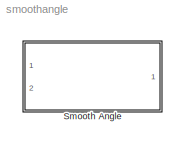
MODEL smoothangle
KIND model
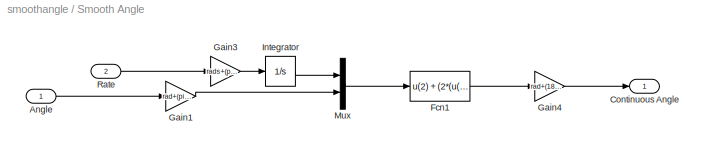
BLOCK [SubSystem] Smooth Angle
  MaskCallbackString = |
  MaskDescription = Constructs continuous angle from angular velocity rate and piecewise continuous angle measured by Joint Sensor on a revolute primitive. Integrates angular velocity to determine number of revolutions that the joint primitive has undergone.
  MaskEnableString = on,on
  MaskIconFrame = on
  MaskIconOpaque = on
  MaskIconRotate = none
  MaskIconUnits = autoscale
  MaskPromptString = Angle measured in:|Rate measured in:
  MaskStyleString = popup(rad|deg),popup(rad/s|deg/s)
  MaskTabNameString = ,
  MaskToolTipString = on,on
  MaskTunableValueString = on,on
  MaskValueString = rad|rad/s
  MaskVarAliasString = ,
  MaskVariables = rad=@1;rads=@2;
  MaskVisibilityString = on,on
  MinAlgLoopOccurrences = off
  Ports = [2, 1]
  RTWSystemCode = Auto
  TreatAsAtomicUnit = off
BLOCK [Inport] Smooth Angle/Angle
  IconDisplay = Port number
  LatchInput = off
  Port = 1
BLOCK [Outport] Smooth Angle/Continuous Angle
  IconDisplay = Port number
BLOCK [Fcn] Smooth Angle/Fcn1
  Expr = u(2) + (2*(u(1) > u(2)) - 1)*2*pi*floor(abs(u(1)-u(2))/(2*pi) + 0.5)
BLOCK [Gain] Smooth Angle/Gain1
  Gain = rad+(pi/180-2)*(rad-1)
BLOCK [Gain] Smooth Angle/Gain3
  Gain = rads+(pi/180-2)*(rads-1)
BLOCK [Gain] Smooth Angle/Gain4
  Gain = rad+(180/pi-2)*(rad-1)
BLOCK [Integrator] Smooth Angle/Integrator
  AbsoluteTolerance = 1e-3
  Ports = [1, 1]
BLOCK [Mux] Smooth Angle/Mux
  DisplayOption = bar
  Inputs = 2
  Ports = [2, 1]
BLOCK [Inport] Smooth Angle/Rate
  IconDisplay = Port number
  LatchInput = off
  Port = 2
LINE Smooth Angle/Angle:1 -> Smooth Angle/Gain1:1
LINE Smooth Angle/Fcn1:1 -> Smooth Angle/Gain4:1
LINE Smooth Angle/Gain1:1 -> Smooth Angle/Mux:2
LINE Smooth Angle/Gain3:1 -> Smooth Angle/Integrator:1
LINE Smooth Angle/Gain4:1 -> Smooth Angle/Continuous Angle:1
LINE Smooth Angle/Integrator:1 -> Smooth Angle/Mux:1
LINE Smooth Angle/Mux:1 -> Smooth Angle/Fcn1:1
LINE Smooth Angle/Rate:1 -> Smooth Angle/Gain3:1
